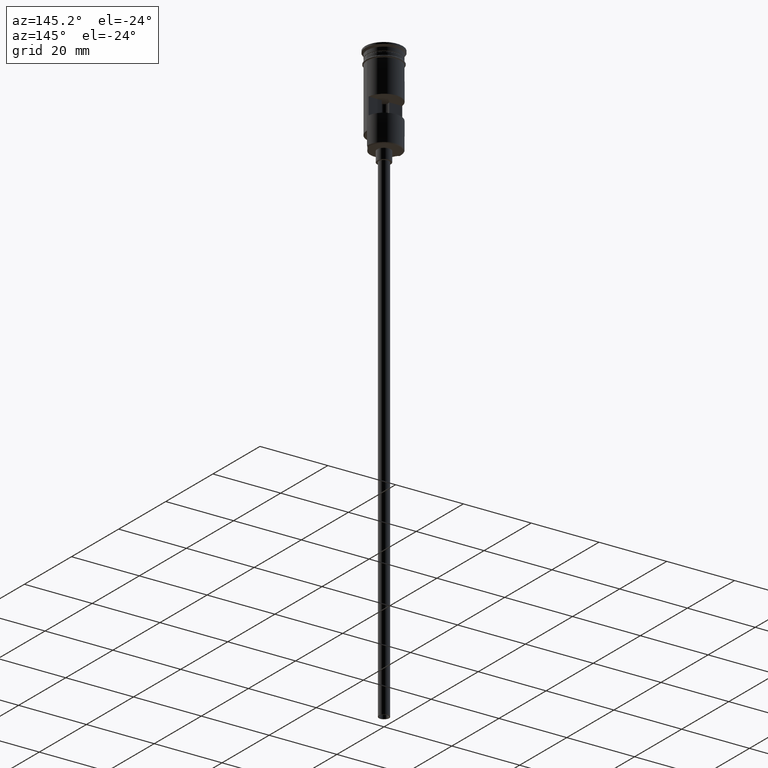
[diagram: clean part render]
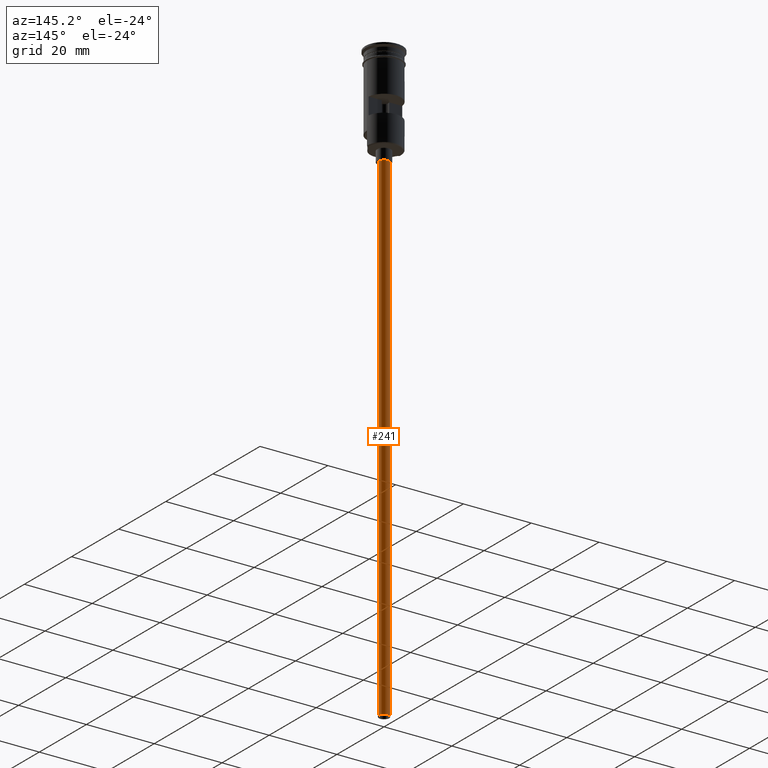
[diagram: same view with one face highlighted and labeled with its STEP entity id]
A machine part, auxiliary view. The second image highlights one B-rep face of the part: STEP entity #241.
In plain terms, the highlighted cylindrical surface (edge-blend (fillet) strip) has radius 1.5 mm, axis along (-0, -0, 1).
Its self-contained STEP definition (entity closure, byte-faithful):
#14 = CARTESIAN_POINT ( 'NONE',  ( -1.500000000000000222, 1.836970198721030181E-16, -29.50000000000000000 ) ) ;
#61 = EDGE_CURVE ( 'NONE', #585, #815, #574, .T. ) ;
#111 = ORIENTED_EDGE ( 'NONE', *, *, #186, .T. ) ;
#129 = CARTESIAN_POINT ( 'NONE',  ( 0.000000000000000000, 0.000000000000000000, -176.5000000000000000 ) ) ;
#152 = AXIS2_PLACEMENT_3D ( 'NONE', #1352, #1078, #866 ) ;
#186 = EDGE_CURVE ( 'NONE', #1082, #815, #306, .T. ) ;
#241 = ADVANCED_FACE ( 'NONE', ( #601 ), #1478, .T. ) ;
#257 = EDGE_CURVE ( 'NONE', #1314, #585, #1521, .T. ) ;
#283 = VECTOR ( 'NONE', #1193, 1000.000000000000000 ) ;
#306 = CIRCLE ( 'NONE', #644, 1.500000000000000222 ) ;
#357 = DIRECTION ( 'NONE',  ( -1.000000000000000000, 0.000000000000000000, 0.000000000000000000 ) ) ;
#373 = DIRECTION ( 'NONE',  ( -0.000000000000000000, -0.000000000000000000, 1.000000000000000000 ) ) ;
#414 = AXIS2_PLACEMENT_3D ( 'NONE', #129, #373, #1588 ) ;
#457 = ORIENTED_EDGE ( 'NONE', *, *, #257, .F. ) ;
#487 = EDGE_LOOP ( 'NONE', ( #457, #744, #111, #1073 ) ) ;
#574 = LINE ( 'NONE', #1569, #283 ) ;
#585 = VERTEX_POINT ( 'NONE', #819 ) ;
#601 = FACE_OUTER_BOUND ( 'NONE', #487, .T. ) ;
#643 = CARTESIAN_POINT ( 'NONE',  ( 1.500000000000000222, 0.000000000000000000, -29.50000000000000000 ) ) ;
#644 = AXIS2_PLACEMENT_3D ( 'NONE', #1330, #1088, #357 ) ;
#744 = ORIENTED_EDGE ( 'NONE', *, *, #1259, .T. ) ;
#815 = VERTEX_POINT ( 'NONE', #643 ) ;
#819 = CARTESIAN_POINT ( 'NONE',  ( 1.500000000000000222, 0.000000000000000000, -176.5000000000000000 ) ) ;
#866 = DIRECTION ( 'NONE',  ( -1.000000000000000000, 0.000000000000000000, 0.000000000000000000 ) ) ;
#885 = LINE ( 'NONE', #1282, #1029 ) ;
#1029 = VECTOR ( 'NONE', #1536, 1000.000000000000000 ) ;
#1073 = ORIENTED_EDGE ( 'NONE', *, *, #61, .F. ) ;
#1078 = DIRECTION ( 'NONE',  ( 0.000000000000000000, 0.000000000000000000, -1.000000000000000000 ) ) ;
#1082 = VERTEX_POINT ( 'NONE', #14 ) ;
#1088 = DIRECTION ( 'NONE',  ( 0.000000000000000000, 0.000000000000000000, -1.000000000000000000 ) ) ;
#1193 = DIRECTION ( 'NONE',  ( -0.000000000000000000, -0.000000000000000000, 1.000000000000000000 ) ) ;
#1259 = EDGE_CURVE ( 'NONE', #1314, #1082, #885, .T. ) ;
#1282 = CARTESIAN_POINT ( 'NONE',  ( -1.500000000000000222, 1.836970198721030181E-16, -176.5000000000000000 ) ) ;
#1314 = VERTEX_POINT ( 'NONE', #1514 ) ;
#1330 = CARTESIAN_POINT ( 'NONE',  ( 0.000000000000000000, 0.000000000000000000, -29.50000000000000000 ) ) ;
#1352 = CARTESIAN_POINT ( 'NONE',  ( 0.000000000000000000, 0.000000000000000000, -176.5000000000000000 ) ) ;
#1478 = CYLINDRICAL_SURFACE ( 'NONE', #414, 1.500000000000000222 ) ;
#1514 = CARTESIAN_POINT ( 'NONE',  ( -1.500000000000000222, 1.836970198721030181E-16, -176.5000000000000000 ) ) ;
#1521 = CIRCLE ( 'NONE', #152, 1.500000000000000222 ) ;
#1536 = DIRECTION ( 'NONE',  ( -0.000000000000000000, -0.000000000000000000, 1.000000000000000000 ) ) ;
#1569 = CARTESIAN_POINT ( 'NONE',  ( 1.500000000000000222, 0.000000000000000000, -176.5000000000000000 ) ) ;
#1588 = DIRECTION ( 'NONE',  ( 1.000000000000000000, 0.000000000000000000, 0.000000000000000000 ) ) ;